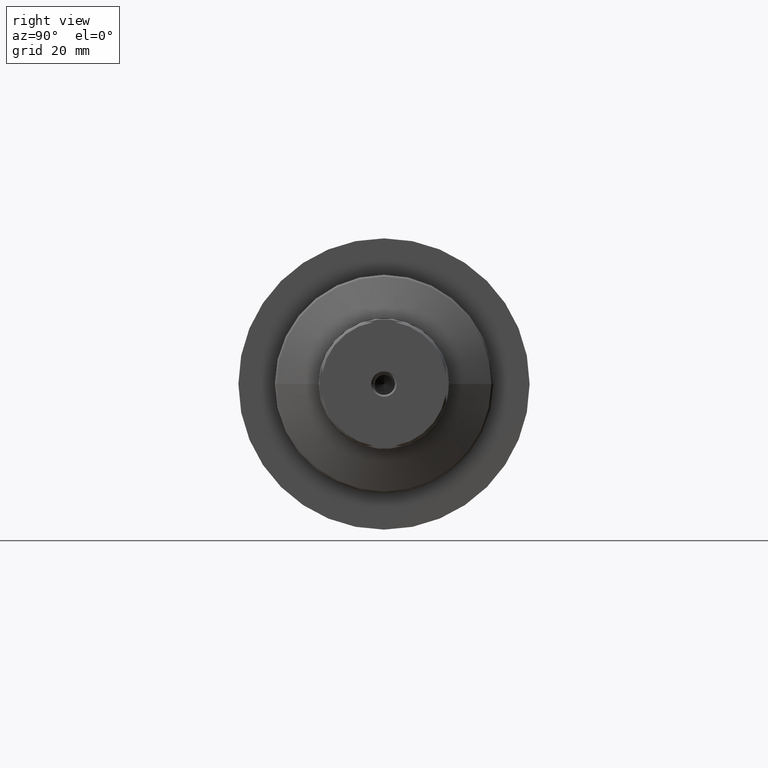
[diagram: clean part render]
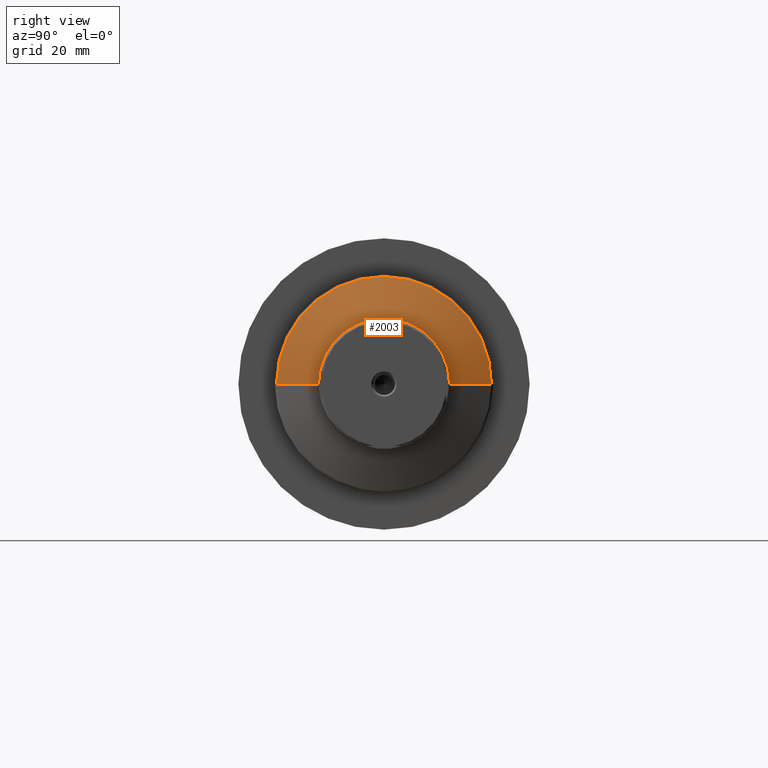
[diagram: same view with one face highlighted and labeled with its STEP entity id]
A machine part, right view. The second image highlights one B-rep face of the part: STEP entity #2003.
In plain terms, the highlighted conical surface has half-angle 69.38 deg.
Its self-contained STEP definition (entity closure, byte-faithful):
#6 = CARTESIAN_POINT ( 'NONE',  ( -11.10000000000066578, -29.49999999999997158, 0.000000000000000000 ) ) ;
#28 = CIRCLE ( 'NONE', #1440, 18.00000000000000000 ) ;
#103 = CARTESIAN_POINT ( 'NONE',  ( -11.10000000000068532, 29.49999999999998579, 3.612708057484689237E-15 ) ) ;
#140 = VERTEX_POINT ( 'NONE', #6 ) ;
#192 = EDGE_CURVE ( 'NONE', #438, #1541, #28, .T. ) ;
#220 = CARTESIAN_POINT ( 'NONE',  ( -6.772881355932618419, 8.787314973116373205E-15, 0.000000000000000000 ) ) ;
#278 = ORIENTED_EDGE ( 'NONE', *, *, #1653, .T. ) ;
#292 = CARTESIAN_POINT ( 'NONE',  ( -6.772881355932611314, -17.99999999999998934, 0.000000000000000000 ) ) ;
#339 = VECTOR ( 'NONE', #927, 1000.000000000000000 ) ;
#398 = DIRECTION ( 'NONE',  ( 3.528251137579949064E-16, -1.000000000000000000, 0.000000000000000000 ) ) ;
#430 = DIRECTION ( 'NONE',  ( -1.000000000000000000, -3.738146982434194072E-16, 0.000000000000000000 ) ) ;
#438 = VERTEX_POINT ( 'NONE', #886 ) ;
#586 = VERTEX_POINT ( 'NONE', #103 ) ;
#595 = DIRECTION ( 'NONE',  ( -1.000000000000000000, -3.738146982434194072E-16, 0.000000000000000000 ) ) ;
#745 = CARTESIAN_POINT ( 'NONE',  ( -11.10000000000068532, 29.49999999999998579, 3.612708057484689237E-15 ) ) ;
#886 = CARTESIAN_POINT ( 'NONE',  ( -6.772881355932618419, 2.204364238465240161E-15, 18.00000000000000000 ) ) ;
#888 = EDGE_LOOP ( 'NONE', ( #278, #1395, #1785, #1734, #1554 ) ) ;
#909 = AXIS2_PLACEMENT_3D ( 'NONE', #220, #595, #1284 ) ;
#927 = DIRECTION ( 'NONE',  ( -0.3521662930787216594, 0.9359374455695166350, 1.146192796918858776E-16 ) ) ;
#1074 = CARTESIAN_POINT ( 'NONE',  ( -11.10000000000067466, 7.169774422920598684E-15, 0.000000000000000000 ) ) ;
#1088 = CONICAL_SURFACE ( 'NONE', #1858, 29.49999999999997868, 1.210911657727792079 ) ;
#1114 = CARTESIAN_POINT ( 'NONE',  ( -6.772881355932625524, 18.00000000000001066, 2.908536147974962135E-15 ) ) ;
#1232 = CIRCLE ( 'NONE', #1980, 29.49999999999997868 ) ;
#1267 = VECTOR ( 'NONE', #1985, 1000.000000000000000 ) ;
#1284 = DIRECTION ( 'NONE',  ( 3.854941057726238097E-16, -1.000000000000000000, 0.000000000000000000 ) ) ;
#1355 = DIRECTION ( 'NONE',  ( -1.000000000000000000, -3.738146982434194072E-16, 0.000000000000000000 ) ) ;
#1386 = EDGE_CURVE ( 'NONE', #586, #140, #1232, .T. ) ;
#1395 = ORIENTED_EDGE ( 'NONE', *, *, #192, .T. ) ;
#1412 = CARTESIAN_POINT ( 'NONE',  ( -11.10000000000066578, -29.49999999999997158, 0.000000000000000000 ) ) ;
#1440 = AXIS2_PLACEMENT_3D ( 'NONE', #1884, #1355, #2213 ) ;
#1443 = EDGE_CURVE ( 'NONE', #1541, #586, #1633, .T. ) ;
#1541 = VERTEX_POINT ( 'NONE', #1114 ) ;
#1554 = ORIENTED_EDGE ( 'NONE', *, *, #1871, .F. ) ;
#1633 = LINE ( 'NONE', #745, #339 ) ;
#1645 = CIRCLE ( 'NONE', #909, 18.00000000000000000 ) ;
#1652 = FACE_OUTER_BOUND ( 'NONE', #888, .T. ) ;
#1653 = EDGE_CURVE ( 'NONE', #1761, #438, #1645, .T. ) ;
#1734 = ORIENTED_EDGE ( 'NONE', *, *, #1386, .T. ) ;
#1760 = DIRECTION ( 'NONE',  ( 1.000000000000000000, 3.738146982434194072E-16, -0.000000000000000000 ) ) ;
#1761 = VERTEX_POINT ( 'NONE', #292 ) ;
#1783 = DIRECTION ( 'NONE',  ( -3.528251137579949064E-16, 1.000000000000000000, 0.000000000000000000 ) ) ;
#1785 = ORIENTED_EDGE ( 'NONE', *, *, #1443, .T. ) ;
#1793 = LINE ( 'NONE', #1412, #1267 ) ;
#1858 = AXIS2_PLACEMENT_3D ( 'NONE', #2176, #430, #398 ) ;
#1871 = EDGE_CURVE ( 'NONE', #1761, #140, #1793, .T. ) ;
#1884 = CARTESIAN_POINT ( 'NONE',  ( -6.772881355932618419, 8.787314973116373205E-15, 0.000000000000000000 ) ) ;
#1980 = AXIS2_PLACEMENT_3D ( 'NONE', #1074, #1760, #1783 ) ;
#1985 = DIRECTION ( 'NONE',  ( -0.3521662930787209933, -0.9359374455695168571, 0.000000000000000000 ) ) ;
#2003 = ADVANCED_FACE ( 'NONE', ( #1652 ), #1088, .T. ) ;
#2176 = CARTESIAN_POINT ( 'NONE',  ( -11.10000000000067466, 7.169774422920598684E-15, 0.000000000000000000 ) ) ;
#2213 = DIRECTION ( 'NONE',  ( 3.854941057726238097E-16, -1.000000000000000000, 0.000000000000000000 ) ) ;